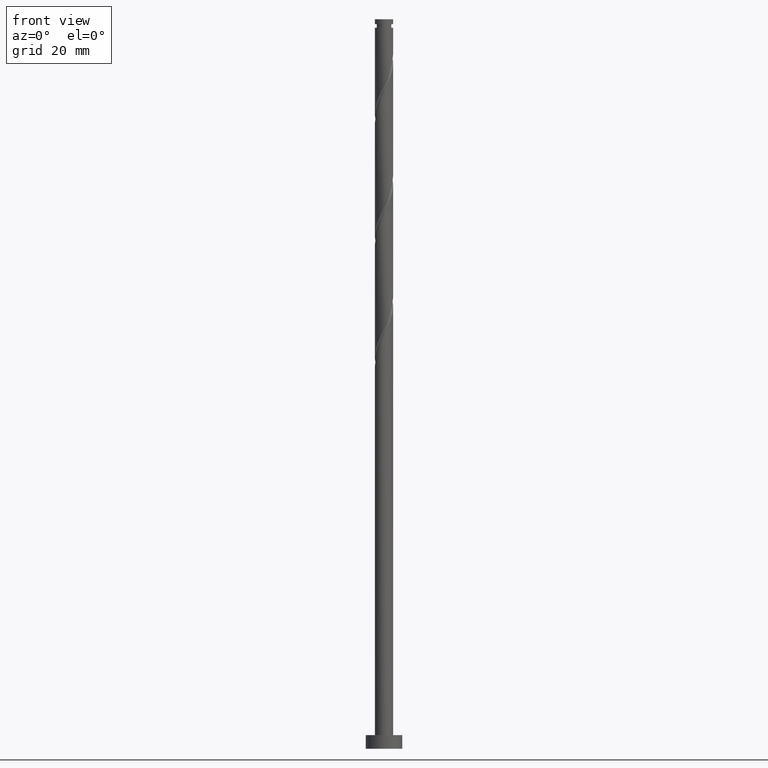
[diagram: clean part render]
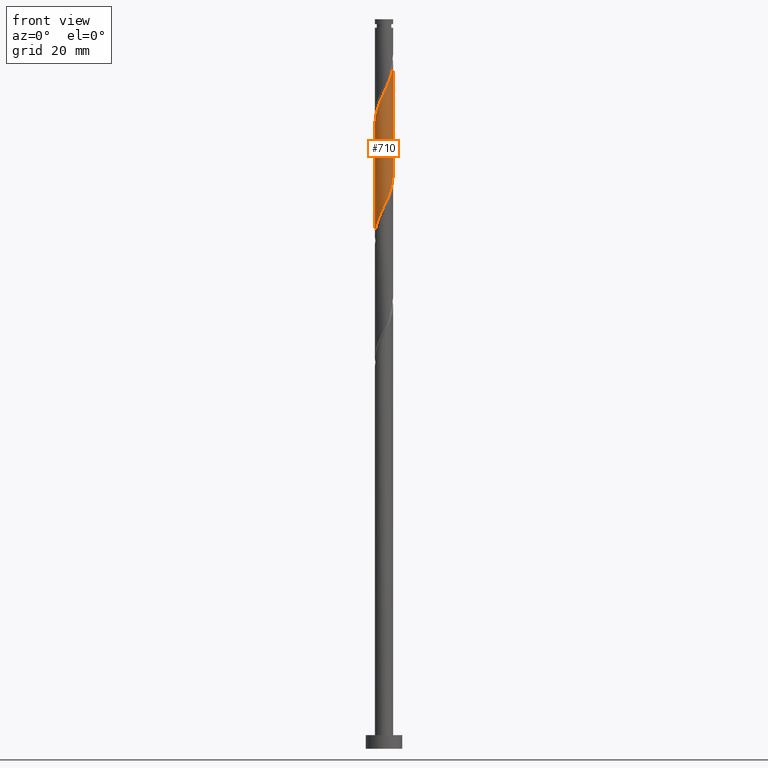
[diagram: same view with one face highlighted and labeled with its STEP entity id]
A machine part, front view. The second image highlights one B-rep face of the part: STEP entity #710.
In plain terms, the highlighted cylindrical surface (edge-blend (fillet) strip) has radius 2 mm, axis along (-0, -0, -1).
Its self-contained STEP definition (entity closure, byte-faithful):
#33 = DIRECTION ( 'NONE',  ( -0.000000000000000000, -0.000000000000000000, -1.000000000000000000 ) ) ;
#54 = VERTEX_POINT ( 'NONE', #1222 ) ;
#110 = CARTESIAN_POINT ( 'NONE',  ( 1.617545623245911779, -1.176242388590886589, 122.9617556776899221 ) ) ;
#121 = CARTESIAN_POINT ( 'NONE',  ( 1.883197487972274375, -0.7322950311120153266, 149.0223617382960413 ) ) ;
#122 = CARTESIAN_POINT ( 'NONE',  ( -1.394470680848406641, -1.433684595806966167, 115.6890284049626558 ) ) ;
#127 = CARTESIAN_POINT ( 'NONE',  ( -1.980155124014554291, -0.4020876473299553888, 138.1132708292051063 ) ) ;
#128 = CARTESIAN_POINT ( 'NONE',  ( -1.741900447066338398, -0.9827425057002936448, 114.4769071928414519 ) ) ;
#230 = CARTESIAN_POINT ( 'NONE',  ( 2.000000000000006217, -0.2290578547702367684, 150.1111897302662612 ) ) ;
#265 = FACE_OUTER_BOUND ( 'NONE', #1406, .T. ) ;
#284 = CARTESIAN_POINT ( 'NONE',  ( -2.000000000000000000, 0.000000000000000000, 160.0000000000000000 ) ) ;
#349 =( BOUNDED_CURVE ( )  B_SPLINE_CURVE ( 2, ( #984, #958, #1462, #1635, #1267, #1647, #110, #1003, #393, #1014, #993, #634, #621, #1149, #1641, #890, #1399, #1009, #122, #1512, #128, #493, #501, #1392, #898 ),
 .UNSPECIFIED., .F., .T. ) 
 B_SPLINE_CURVE_WITH_KNOTS ( ( 3, 2, 2, 2, 2, 2, 2, 2, 2, 2, 2, 2, 3 ),
 ( 0.5545252162417513286, 0.5568181818181817677, 0.5681818181818182323, 0.5795454545454545858, 0.5909090909090909394, 0.6022727272727272929, 0.6136363636363636465, 0.6250000000000000000, 0.6363636363636363535, 0.6477272727272727071, 0.6590909090909090606, 0.6704545454545454142, 0.6795252162417513286 ),
 .UNSPECIFIED. ) 
 CURVE ( )  GEOMETRIC_REPRESENTATION_ITEM ( )  RATIONAL_B_SPLINE_CURVE ( ( 0.9061101570135631222, 0.9072237824201453416, 0.9090909090909228274, 0.8998376744372251768, 0.9090909090909228274, 0.8998376744372251768, 0.9090909090909228274, 0.8998376744372251768, 0.9090909090909228274, 0.8998376744372251768, 0.9090909090909228274, 0.8998376744372251768, 0.9090909090909228274, 0.8998376744372251768, 0.9090909090909228274, 0.8998376744372251768, 0.9090909090909228274, 0.8998376744372251768, 0.9090909090909228274, 0.8998376744372251768, 0.9090909090909228274, 0.8998376744372251768, 0.9090909090909228274, 0.9017048011080026626, 0.9061101570135631222 ) ) 
 REPRESENTATION_ITEM ( '' )  );
#371 = CARTESIAN_POINT ( 'NONE',  ( -0.9928482695149692949, -1.759812803970230322, 141.7496344655687608 ) ) ;
#391 = CARTESIAN_POINT ( 'NONE',  ( -1.617545623245915110, -1.176242388590888366, 139.9314526473869194 ) ) ;
#393 = CARTESIAN_POINT ( 'NONE',  ( 1.220637884402353990, -1.584311571365224047, 121.7496344655687182 ) ) ;
#408 =( BOUNDED_CURVE ( )  B_SPLINE_CURVE ( 2, ( #1265, #875, #1651, #127, #487, #505, #391, #1147, #1497, #371, #1660, #1118, #990, #1511, #1237, #1526, #1645, #513, #1013, #1020, #1391, #121, #609, #230, #1384 ),
 .UNSPECIFIED., .F., .T. ) 
 B_SPLINE_CURVE_WITH_KNOTS ( ( 3, 2, 2, 2, 2, 2, 2, 2, 2, 2, 2, 2, 3 ),
 ( 0.5545252162417511066, 0.5568181818181818787, 0.5681818181818181213, 0.5795454545454545858, 0.5909090909090908283, 0.6022727272727272929, 0.6136363636363636465, 0.6250000000000000000, 0.6363636363636363535, 0.6477272727272727071, 0.6590909090909091717, 0.6704545454545454142, 0.6795252162417517727 ),
 .UNSPECIFIED. ) 
 CURVE ( )  GEOMETRIC_REPRESENTATION_ITEM ( )  RATIONAL_B_SPLINE_CURVE ( ( 0.9061101570135692285, 0.9072237824201514478, 0.9090909090909291557, 0.8998376744372313940, 0.9090909090909291557, 0.8998376744372313940, 0.9090909090909291557, 0.8998376744372313940, 0.9090909090909291557, 0.8998376744372313940, 0.9090909090909291557, 0.8998376744372313940, 0.9090909090909291557, 0.8998376744372313940, 0.9090909090909291557, 0.8998376744372313940, 0.9090909090909291557, 0.8998376744372313940, 0.9090909090909291557, 0.8998376744372313940, 0.9090909090909291557, 0.8998376744372313940, 0.9090909090909291557, 0.9017048011080085468, 0.9061101570135697836 ) ) 
 REPRESENTATION_ITEM ( '' )  );
#487 = CARTESIAN_POINT ( 'NONE',  ( -1.883409435608319749, -0.6728810428757548978, 138.7193314352656728 ) ) ;
#493 = CARTESIAN_POINT ( 'NONE',  ( -1.883197487972271711, -0.7322950311120139943, 113.8708465867808286 ) ) ;
#501 = CARTESIAN_POINT ( 'NONE',  ( -1.948211798543800555, -0.4521844623765077231, 113.2647859807202337 ) ) ;
#505 = CARTESIAN_POINT ( 'NONE',  ( -1.786663747202085428, -0.9436744384215550729, 139.3253920413262961 ) ) ;
#513 = CARTESIAN_POINT ( 'NONE',  ( 1.188337955536409529, -1.634179211325361702, 146.5981193140536050 ) ) ;
#609 = CARTESIAN_POINT ( 'NONE',  ( 1.948211798543803663, -0.4521844623765088889, 149.6284223443566361 ) ) ;
#613 = EDGE_CURVE ( 'NONE', #848, #780, #349, .T. ) ;
#621 = CARTESIAN_POINT ( 'NONE',  ( 0.1703224295138019428, -1.992734370156874713, 119.3253920413262819 ) ) ;
#634 = CARTESIAN_POINT ( 'NONE',  ( 0.4568343776401059819, -1.968245701812300963, 119.9314526473868909 ) ) ;
#657 = VECTOR ( 'NONE', #33, 1000.000000000000000 ) ;
#710 = ADVANCED_FACE ( 'NONE', ( #265 ), #753, .T. ) ;
#753 = CYLINDRICAL_SURFACE ( 'NONE', #986, 2.000000000000000000 ) ;
#756 = ORIENTED_EDGE ( 'NONE', *, *, #613, .F. ) ;
#763 = ORIENTED_EDGE ( 'NONE', *, *, #907, .F. ) ;
#780 = VERTEX_POINT ( 'NONE', #1561 ) ;
#793 = CARTESIAN_POINT ( 'NONE',  ( 2.000000000000000000, 2.449293598294706414E-16, 160.0000000000000000 ) ) ;
#848 = VERTEX_POINT ( 'NONE', #1290 ) ;
#867 = CARTESIAN_POINT ( 'NONE',  ( 0.000000000000000000, 0.000000000000000000, 160.0000000000000000 ) ) ;
#875 = CARTESIAN_POINT ( 'NONE',  ( -2.000000000000003997, -0.05755105304763768331, 137.3859143546223720 ) ) ;
#890 = CARTESIAN_POINT ( 'NONE',  ( -0.6798004310727959743, -1.902776961498551689, 117.5072102231444831 ) ) ;
#898 = CARTESIAN_POINT ( 'NONE',  ( -2.000000000000000000, 1.832210536178305115E-15, 112.2960586418392950 ) ) ;
#907 = EDGE_CURVE ( 'NONE', #54, #848, #1041, .T. ) ;
#958 = CARTESIAN_POINT ( 'NONE',  ( 1.999999999999999556, -0.05755105304764628060, 125.5072939704543984 ) ) ;
#963 = VECTOR ( 'NONE', #1555, 1000.000000000000000 ) ;
#984 = CARTESIAN_POINT ( 'NONE',  ( 2.000000000000000000, -2.221087874469210557E-15, 125.6293919751726094 ) ) ;
#986 = AXIS2_PLACEMENT_3D ( 'NONE', #867, #1128, #1275 ) ;
#990 = CARTESIAN_POINT ( 'NONE',  ( -0.1703224295138030253, -1.992734370156877821, 143.5678162837505170 ) ) ;
#993 = CARTESIAN_POINT ( 'NONE',  ( 0.7248413235775363894, -1.864029252891264754, 120.5375132534475142 ) ) ;
#1003 = CARTESIAN_POINT ( 'NONE',  ( 1.448427499289742126, -1.408810338760219993, 122.3556950716292988 ) ) ;
#1009 = CARTESIAN_POINT ( 'NONE',  ( -1.188337955536407531, -1.634179211325358594, 116.2950890110232649 ) ) ;
#1013 = CARTESIAN_POINT ( 'NONE',  ( 1.394470680848408417, -1.433684595806967943, 147.2041799201141998 ) ) ;
#1014 = CARTESIAN_POINT ( 'NONE',  ( 0.9928482695149669635, -1.759812803970227657, 121.1435738595081091 ) ) ;
#1020 = CARTESIAN_POINT ( 'NONE',  ( 1.600603406160406639, -1.233189980288575738, 147.8102405261747947 ) ) ;
#1041 = LINE ( 'NONE', #793, #963 ) ;
#1104 = VERTEX_POINT ( 'NONE', #1353 ) ;
#1118 = CARTESIAN_POINT ( 'NONE',  ( -0.4568343776401065925, -1.968245701812304516, 142.9617556776899221 ) ) ;
#1128 = DIRECTION ( 'NONE',  ( -0.000000000000000000, -0.000000000000000000, -1.000000000000000000 ) ) ;
#1147 = CARTESIAN_POINT ( 'NONE',  ( -1.448427499289743903, -1.408810338760221992, 140.5375132534475142 ) ) ;
#1149 = CARTESIAN_POINT ( 'NONE',  ( -0.1161895186125010554, -2.017223038501448240, 118.7193314352656728 ) ) ;
#1222 = CARTESIAN_POINT ( 'NONE',  ( 2.000000000000003553, 1.181588835576204861E-15, 150.5971496832376033 ) ) ;
#1237 = CARTESIAN_POINT ( 'NONE',  ( 0.3979949748426483414, -1.960000000000003517, 144.7799374958717635 ) ) ;
#1265 = CARTESIAN_POINT ( 'NONE',  ( -2.000000000000003553, -1.271329759797182220E-15, 137.2638163499042037 ) ) ;
#1267 = CARTESIAN_POINT ( 'NONE',  ( 1.883409435608316418, -0.6728810428757546758, 124.1738768898111260 ) ) ;
#1275 = DIRECTION ( 'NONE',  ( -1.000000000000000000, 0.000000000000000000, 0.000000000000000000 ) ) ;
#1290 = CARTESIAN_POINT ( 'NONE',  ( 2.000000000000000000, -2.221087874469210557E-15, 125.6293919751726094 ) ) ;
#1293 = EDGE_CURVE ( 'NONE', #1104, #54, #408, .T. ) ;
#1353 = CARTESIAN_POINT ( 'NONE',  ( -2.000000000000003553, -1.271329759797182417E-15, 137.2638163499042037 ) ) ;
#1384 = CARTESIAN_POINT ( 'NONE',  ( 2.000000000000003553, 1.181588835576204861E-15, 150.5971496832376033 ) ) ;
#1391 = CARTESIAN_POINT ( 'NONE',  ( 1.741900447066340618, -0.9827425057002959763, 148.4163011322353611 ) ) ;
#1392 = CARTESIAN_POINT ( 'NONE',  ( -2.000000000000000000, -0.2290578547702447065, 112.7820185948105802 ) ) ;
#1399 = CARTESIAN_POINT ( 'NONE',  ( -0.9340691933046016970, -1.768478086411955141, 116.9011496170838456 ) ) ;
#1400 = ORIENTED_EDGE ( 'NONE', *, *, #1597, .T. ) ;
#1406 = EDGE_LOOP ( 'NONE', ( #763, #1623, #1400, #756 ) ) ;
#1462 = CARTESIAN_POINT ( 'NONE',  ( 1.996690616564939402, -0.1150068768444773015, 125.3859981019323442 ) ) ;
#1497 = CARTESIAN_POINT ( 'NONE',  ( -1.220637884402356654, -1.584311571365225824, 141.1435738595081375 ) ) ;
#1511 = CARTESIAN_POINT ( 'NONE',  ( 0.1161895186125003476, -2.017223038501451349, 144.1738768898111687 ) ) ;
#1512 = CARTESIAN_POINT ( 'NONE',  ( -1.600603406160404640, -1.233189980288572629, 115.0829677989020610 ) ) ;
#1526 = CARTESIAN_POINT ( 'NONE',  ( 0.6798004310727963073, -1.902776961498555464, 145.3859981019323868 ) ) ;
#1535 = LINE ( 'NONE', #284, #657 ) ;
#1555 = DIRECTION ( 'NONE',  ( -0.000000000000000000, -0.000000000000000000, -1.000000000000000000 ) ) ;
#1561 = CARTESIAN_POINT ( 'NONE',  ( -2.000000000000000000, 1.832210536178305115E-15, 112.2960586418392950 ) ) ;
#1597 = EDGE_CURVE ( 'NONE', #1104, #780, #1535, .T. ) ;
#1623 = ORIENTED_EDGE ( 'NONE', *, *, #1293, .F. ) ;
#1635 = CARTESIAN_POINT ( 'NONE',  ( 1.980155124014550738, -0.4020876473299555554, 124.7799374958717209 ) ) ;
#1641 = CARTESIAN_POINT ( 'NONE',  ( -0.3979949748426485634, -1.959999999999999964, 118.1132708292050779 ) ) ;
#1645 = CARTESIAN_POINT ( 'NONE',  ( 0.9340691933046022521, -1.768478086411958472, 145.9920587079930101 ) ) ;
#1647 = CARTESIAN_POINT ( 'NONE',  ( 1.786663747202081876, -0.9436744384215538517, 123.5678162837505312 ) ) ;
#1651 = CARTESIAN_POINT ( 'NONE',  ( -1.996690616564943399, -0.1150068768444766354, 137.5072102231444546 ) ) ;
#1660 = CARTESIAN_POINT ( 'NONE',  ( -0.7248413235775381658, -1.864029252891266752, 142.3556950716293841 ) ) ;